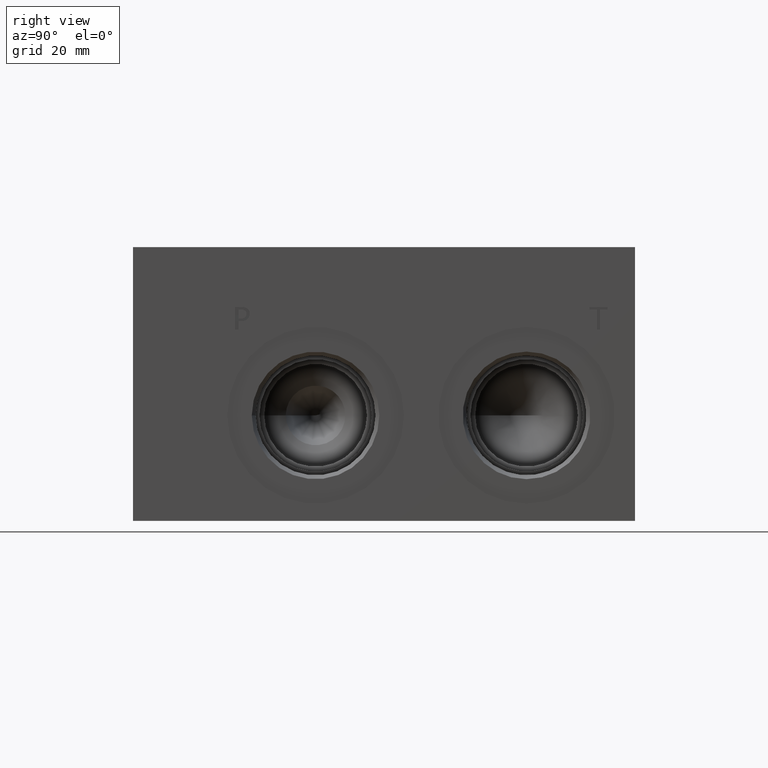
[diagram: clean part render]
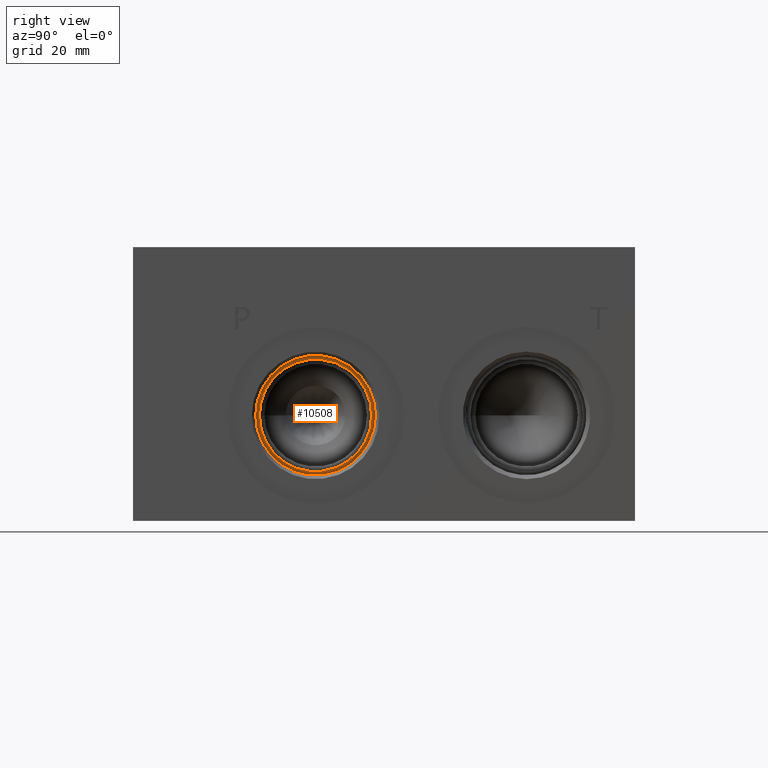
[diagram: same view with one face highlighted and labeled with its STEP entity id]
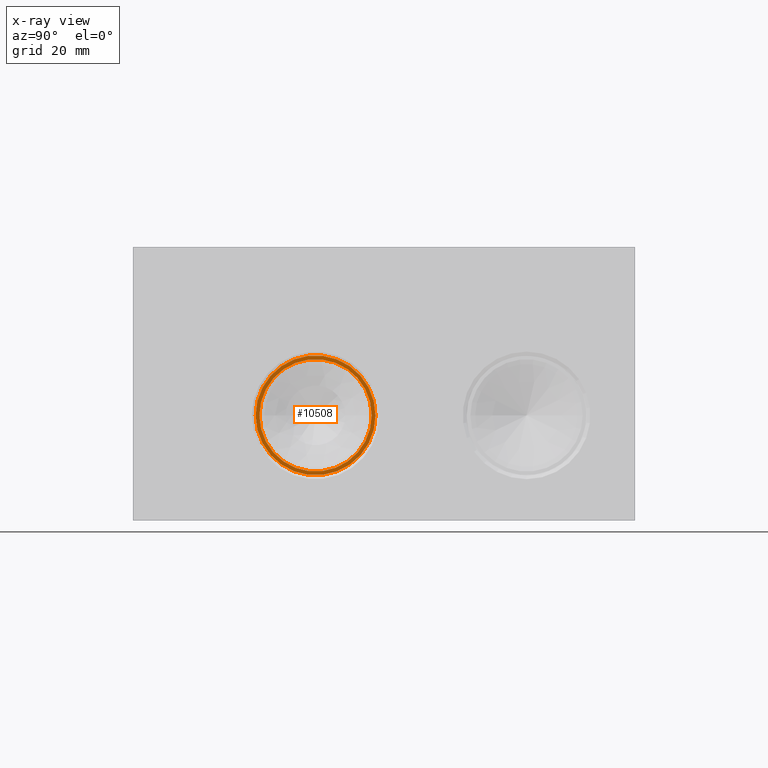
[diagram: x-ray of the same camera — body ghosted, the highlighted face saturated]
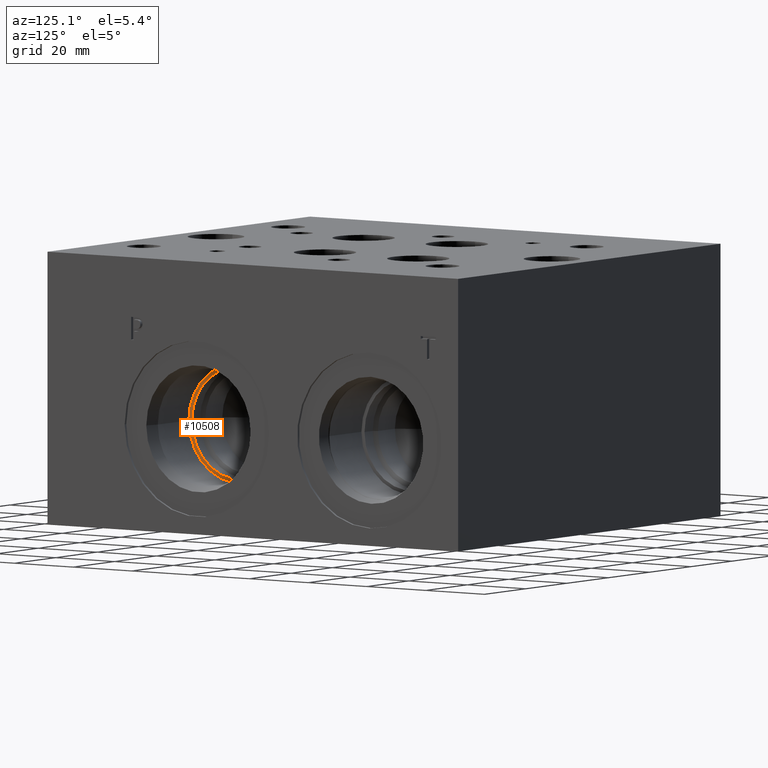
[diagram: same view with one face highlighted and labeled with its STEP entity id]
A machine part, right view. The second image highlights one B-rep face of the part: STEP entity #10508.
The next image is the same camera in x-ray: the body ghosted, the highlighted face saturated — about 0% of this face is hidden behind the body in this view.
A second angle (auxiliary view) of the same face is appended — the face is thin or edge-on in the first view.
In plain terms, the highlighted planar face has unit normal (1, 0, 0).
Its self-contained STEP definition (entity closure, byte-faithful):
#130=CIRCLE('',#10947,16.6751);
#131=CIRCLE('',#10948,16.6751);
#132=CIRCLE('',#10949,15.6337);
#362=FACE_BOUND('',#1724,.T.);
#682=PLANE('',#10946);
#1133=FACE_OUTER_BOUND('',#1723,.T.);
#1723=EDGE_LOOP('',(#8926,#8927));
#1724=EDGE_LOOP('',(#8928));
#4920=VERTEX_POINT('',#17687);
#4921=VERTEX_POINT('',#17688);
#4922=VERTEX_POINT('',#17691);
#6311=EDGE_CURVE('',#4920,#4921,#130,.T.);
#6312=EDGE_CURVE('',#4921,#4920,#131,.T.);
#6313=EDGE_CURVE('',#4922,#4922,#132,.T.);
#8926=ORIENTED_EDGE('',*,*,#6311,.T.);
#8927=ORIENTED_EDGE('',*,*,#6312,.T.);
#8928=ORIENTED_EDGE('',*,*,#6313,.F.);
#10508=ADVANCED_FACE('',(#1133,#362),#682,.T.);
#10946=AXIS2_PLACEMENT_3D('',#17686,#12748,#12749);
#10947=AXIS2_PLACEMENT_3D('',#17689,#12750,#12751);
#10948=AXIS2_PLACEMENT_3D('',#17690,#12752,#12753);
#10949=AXIS2_PLACEMENT_3D('',#17692,#12754,#12755);
#12748=DIRECTION('center_axis',(1.,0.,0.));
#12749=DIRECTION('ref_axis',(0.,1.,0.));
#12750=DIRECTION('center_axis',(1.,0.,0.));
#12751=DIRECTION('ref_axis',(0.,1.,0.));
#12752=DIRECTION('center_axis',(1.,0.,0.));
#12753=DIRECTION('ref_axis',(0.,1.,0.));
#12754=DIRECTION('center_axis',(1.,0.,0.));
#12755=DIRECTION('ref_axis',(0.,1.,0.));
#17686=CARTESIAN_POINT('Origin',(107.1626,50.8,29.3624));
#17687=CARTESIAN_POINT('',(107.1626,67.4751,29.3624));
#17688=CARTESIAN_POINT('',(107.1626,34.1249,29.3624));
#17689=CARTESIAN_POINT('Origin',(107.1626,50.8,29.3624));
#17690=CARTESIAN_POINT('Origin',(107.1626,50.8,29.3624));
#17691=CARTESIAN_POINT('',(107.1626,35.1663,29.3624));
#17692=CARTESIAN_POINT('Origin',(107.1626,50.8,29.3624));